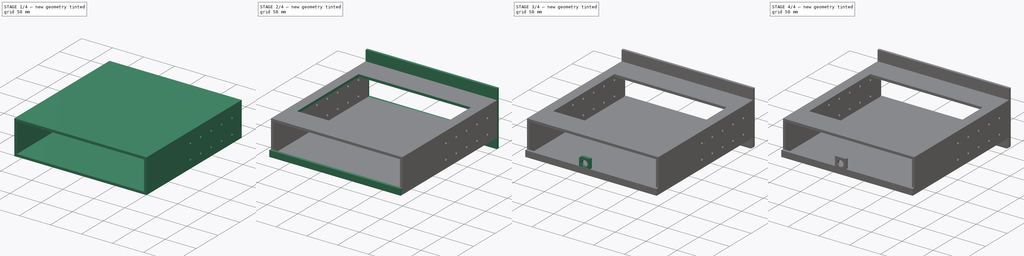
[diagram: build sequence overview — one tinted view per stage of 4, left to right]
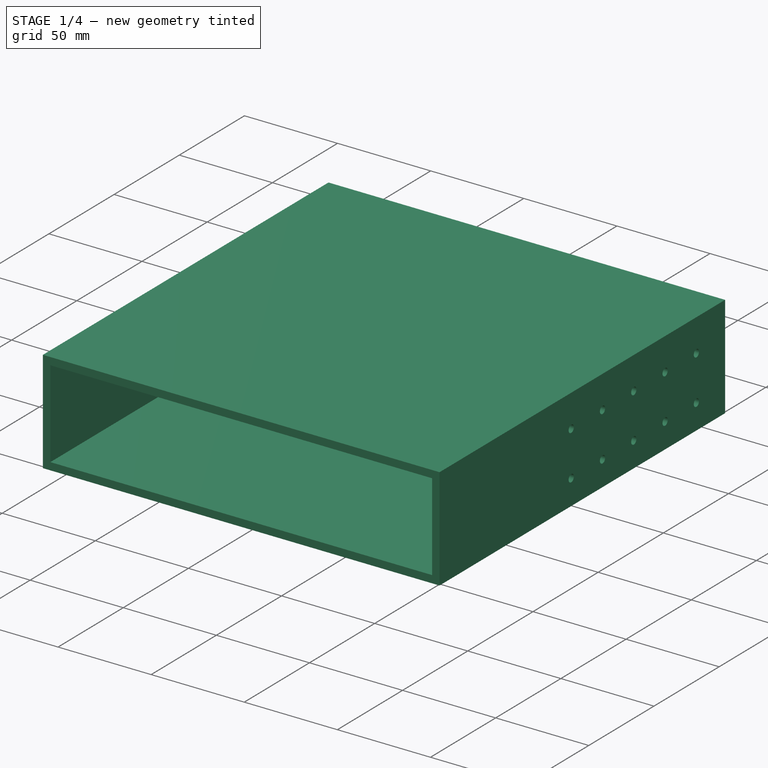
[diagram: stage 1 of 4 — iso view after this stage's code; geometry added in this stage tinted green]
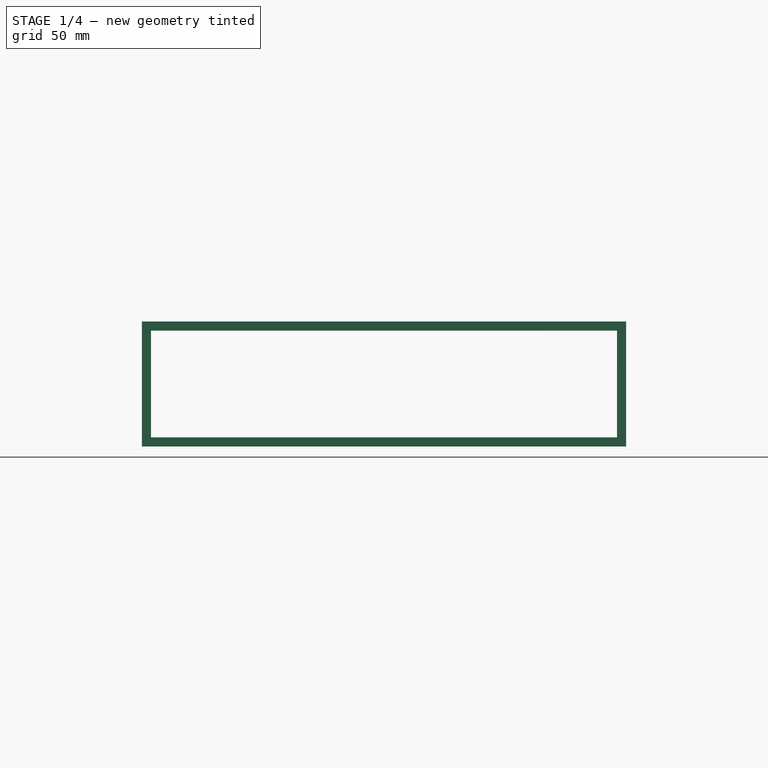
[diagram: stage 1 of 4 — front view after this stage's code; geometry added in this stage tinted green]
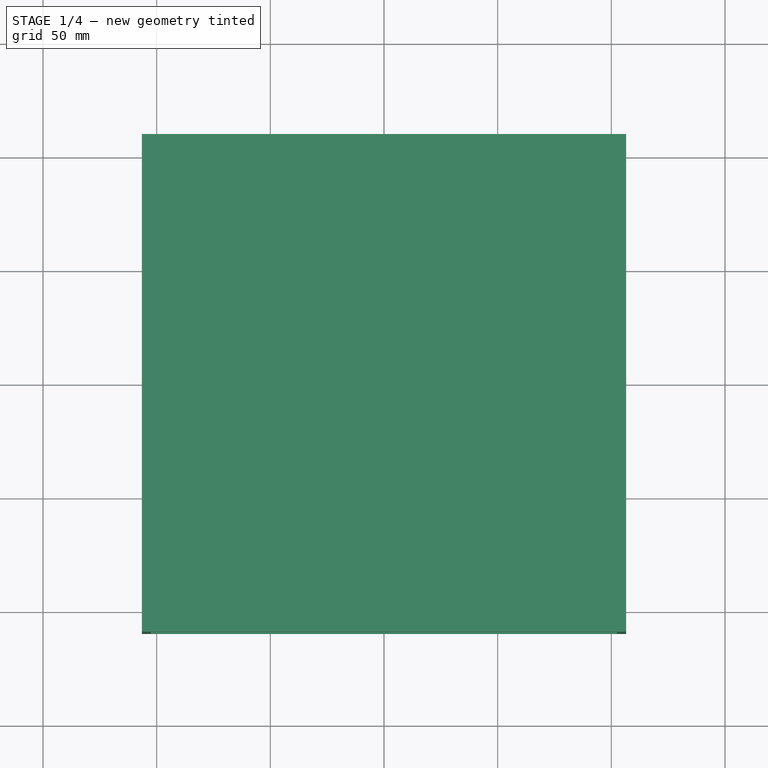
[diagram: stage 1 of 4 — top view after this stage's code; geometry added in this stage tinted green]
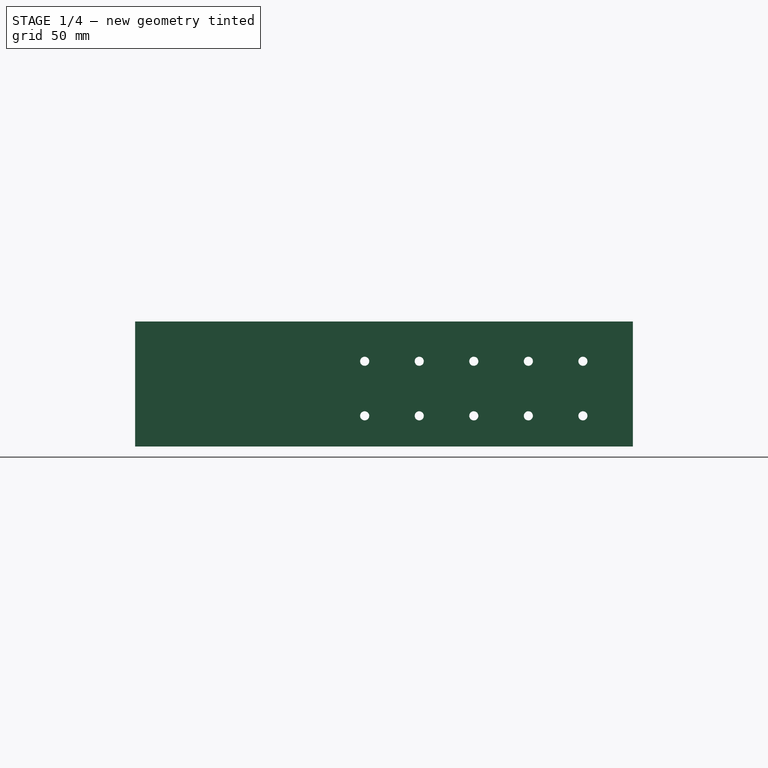
[diagram: stage 1 of 4 — right view after this stage's code; geometry added in this stage tinted green]
FCSTD DOCUMENT  (FreeCAD 1.0R38641 +678 (Git))
Label: frame
License: All rights reserved
LicenseURL: https://en.wikipedia.org/wiki/All_rights_reserved
objects: Sketcher::SketchObject×14, PartDesign::Plane×8, PartDesign::Pad×7, PartDesign::Fillet×3, PartDesign::Chamfer×3, PartDesign::Pocket×1, PartDesign::Body×1
note: 79 computed .brp shape members not serialized (recipe doc carries the construction recipe); baked Part::Feature solids carry a one-line shape summary decoded from their .brp

FEATURE [Sketcher::SketchObject] Sketch001  label="Dół ściana"
  ArcFitTolerance = 1e-06
  AttachmentSupport = -> [XY_Plane]
  FullyConstrained = false
  MakeInternals = false
  MapMode = 5
  sketch-geometry (5):
    g0: LineSegment StartX=-102.5 StartY=-109.5 StartZ=0 EndX=102.5 EndY=-109.5 EndZ=0
    g1: LineSegment StartX=102.5 StartY=-109.5 StartZ=0 EndX=102.5 EndY=109.5 EndZ=0
    g2: LineSegment StartX=102.5 StartY=109.5 StartZ=0 EndX=-102.5 EndY=109.5 EndZ=0
    g3: LineSegment StartX=-102.5 StartY=109.5 StartZ=0 EndX=-102.5 EndY=-109.5 EndZ=0
    g4: GeomPoint [constr] X=0 Y=0 Z=0
  constraints (11):
    c: Coincident(g0,g1)
    c: Coincident(g1,g2)
    c: Coincident(g2,g3)
    c: Coincident(g3,g0)
    c: Horizontal(g0)
    c: Horizontal(g2)
    c: Vertical(g1)
    c: Vertical(g3)
    c: Symmetric(g2,g0,g4)
    c: Distance(g1,g3) = 205
    c: Distance(g0,g2) = 219
FEATURE [PartDesign::Pad] Pad  label="Dół ściana001"
  Direction = (0,0,1)
  Length = 4
  Length2 = 10
  Profile = -> Sketch001
  ReferenceAxis = -> Sketch001 [N_Axis]
  Refine = true
  Suppressed = false
  Type = 0
FEATURE [Sketcher::SketchObject] Sketch002
  ArcFitTolerance = 1e-06
  AttachmentSupport = -> [XZ_Plane]
  FullyConstrained = true
  MakeInternals = false
  MapMode = 5
  Placement = pos=(0,0,0) rot=(1,0,0;1.5708rad)
FEATURE [PartDesign::Plane] DatumPlane  label="Prawa Perspektywa"
  AttachmentSupport = -> [Pad]
  Length = 256.67
  MapMode = 5
  Placement = pos=(-102.5,0,0) rot=(0.57735,-0.57735,-0.57735;2.0944rad)
  ResizeMode = 0
  Width = 126.62
FEATURE [Sketcher::SketchObject] Sketch005
  ArcFitTolerance = 1e-06
  AttachmentSupport = -> [DatumPlane]
  ExternalGeometry = -> [Pad]
  FullyConstrained = true
  MakeInternals = false
  MapMode = 5
  Placement = pos=(-102.5,0,0) rot=(0.57735,-0.57735,-0.57735;2.0944rad)
  sketch-geometry (14):
    g0: LineSegment StartX=-109.5 StartY=0 StartZ=0 EndX=109.5 EndY=0 EndZ=0
    g1: LineSegment StartX=109.5 StartY=0 StartZ=0 EndX=109.5 EndY=51 EndZ=0
    g2: LineSegment StartX=109.5 StartY=51 StartZ=0 EndX=-109.5 EndY=51 EndZ=0
    g3: LineSegment StartX=-109.5 StartY=51 StartZ=0 EndX=-109.5 EndY=0 EndZ=0
    g4: Circle CenterX=-87.5 CenterY=37.5 CenterZ=0 NormalX=0 NormalY=0 NormalZ=1 AngleXU=0 Radius=2
    g5: Circle CenterX=-87.5 CenterY=13.5 CenterZ=0 NormalX=0 NormalY=0 NormalZ=1 AngleXU=0 Radius=2
    g6: Circle CenterX=-63.5 CenterY=37.5 CenterZ=0 NormalX=0 NormalY=0 NormalZ=1 AngleXU=0 Radius=2
    g7: Circle CenterX=-63.5 CenterY=13.5 CenterZ=0 NormalX=0 NormalY=0 NormalZ=1 AngleXU=0 Radius=2
    g8: Circle CenterX=-39.5 CenterY=37.5 CenterZ=0 NormalX=0 NormalY=0 NormalZ=1 AngleXU=0 Radius=2
    g9: Circle CenterX=-39.5 CenterY=13.5 CenterZ=0 NormalX=0 NormalY=0 NormalZ=1 AngleXU=0 Radius=2
    g10: Circle CenterX=-15.5 CenterY=37.5 CenterZ=0 NormalX=0 NormalY=0 NormalZ=1 AngleXU=0 Radius=2
    g11: Circle CenterX=-15.5 CenterY=13.5 CenterZ=0 NormalX=0 NormalY=0 NormalZ=1 AngleXU=0 Radius=2
    g12: Circle CenterX=8.5 CenterY=37.5 CenterZ=0 NormalX=0 NormalY=0 NormalZ=1 AngleXU=0 Radius=2
    g13: Circle CenterX=8.5 CenterY=13.5 CenterZ=0 NormalX=0 NormalY=0 NormalZ=1 AngleXU=0 Radius=2
  constraints (41):
    c: Coincident(g0,g1)
    c: Coincident(g1,g2)
    c: Coincident(g2,g3)
    c: Coincident(g3,g0)
    c: Horizontal(g0)
    c: Horizontal(g2)
    c: Vertical(g1)
    c: Vertical(g3)
    c: Distance(g1,g3) = 219
    c: Distance(g0,g2) = 51
    c: Coincident(g0,g-3)
    c: Diameter(g4) = 4
    c: Diameter(g5) = 4
    c: Diameter(g6) = 4
    c: Diameter(g7) = 4
    c: Diameter(g8) = 4
    c: Diameter(g9) = 4
    c: Diameter(g10) = 4
    c: Diameter(g11) = 4
    c: Distance(g4,g3) = 20
    c: Distance(g5,g3) = 20
    c: Distance(g5,g0) = 11.5
    c: Distance(g4,g5) = 20
    c: Distance(g5,g7) = 20
    c: Distance(g7,g0) = 11.5
    c: Distance(g6,g4) = 20
    c: Distance(g6,g7) = 20
    c: Distance(g8,g6) = 20
    c: Distance(g8,g9) = 20
    c: Distance(g9,g7) = 20
    c: Distance(g9,g0) = 11.5
    c: Distance(g11,g10) = 20
    c: Distance(g10,g8) = 20
    c: Distance(g11,g0) = 11.5
    c: Distance(g11,g9) = 20
    c: Diameter(g12) = 4
    c: Diameter(g13) = 4
    c: Distance(g12,g10) = 20
    c: Distance(g13,g11) = 20
    c: Distance(g13,g0) = 11.5
    c: Distance(g13,g12) = 20
FEATURE [PartDesign::Pad] Pad001  label="Ściana lewa"
  BaseFeature = -> Pad
  Direction = (-1,0,0)
  Length = 4
  Length2 = 10
  Profile = -> Sketch005
  ReferenceAxis = -> Sketch005 [N_Axis]
  Refine = true
  Suppressed = false
  Type = 0
FEATURE [Sketcher::SketchObject] Sketch006
  ArcFitTolerance = 1e-06
  AttachmentSupport = -> [DatumPlane]
  FullyConstrained = true
  MakeInternals = false
  MapMode = 5
  Placement = pos=(-102.5,0,0) rot=(0.57735,-0.57735,-0.57735;2.0944rad)
FEATURE [PartDesign::Plane] DatumPlane001  label="Lewa perspektywa"
  AttachmentSupport = -> [Pad001]
  Length = 256.67
  MapMode = 13
  Placement = pos=(102.5,-36.5,1.33333) rot=(0.57735,0.57735,0.57735;2.0944rad)
  ResizeMode = 0
  Width = 126.62
FEATURE [Sketcher::SketchObject] Sketch  label="Lewa ściana"
  ArcFitTolerance = 1e-06
  AttachmentSupport = -> [DatumPlane001]
  FullyConstrained = true
  MakeInternals = false
  MapMode = 5
  Placement = pos=(102.5,-36.5,1.33333) rot=(0.57735,0.57735,0.57735;2.0944rad)
FEATURE [Sketcher::SketchObject] Sketch007
  ArcFitTolerance = 1e-06
  AttachmentSupport = -> [DatumPlane001]
  ExternalGeometry = -> [Pad001]
  FullyConstrained = true
  MakeInternals = false
  MapMode = 5
  Placement = pos=(102.5,-36.5,1.33333) rot=(0.57735,0.57735,0.57735;2.0944rad)
  sketch-geometry (14):
    g0: LineSegment StartX=146 StartY=-1.33333 StartZ=0 EndX=146 EndY=49.6667 EndZ=0
    g1: LineSegment StartX=146 StartY=49.6667 StartZ=0 EndX=-73 EndY=49.6667 EndZ=0
    g2: LineSegment StartX=-73 StartY=49.6667 StartZ=0 EndX=-73 EndY=-1.33333 EndZ=0
    g3: LineSegment StartX=-73 StartY=-1.33333 StartZ=0 EndX=146 EndY=-1.33333 EndZ=0
    g4: Circle CenterX=124 CenterY=36.1667 CenterZ=0 NormalX=0 NormalY=0 NormalZ=1 AngleXU=0 Radius=2
    g5: Circle CenterX=124 CenterY=12.1667 CenterZ=0 NormalX=0 NormalY=0 NormalZ=1 AngleXU=0 Radius=2
    g6: Circle CenterX=100 CenterY=12.1667 CenterZ=0 NormalX=0 NormalY=0 NormalZ=1 AngleXU=0 Radius=2
    g7: Circle CenterX=100 CenterY=36.1667 CenterZ=0 NormalX=0 NormalY=0 NormalZ=1 AngleXU=0 Radius=2
    g8: Circle CenterX=76 CenterY=36.1667 CenterZ=0 NormalX=0 NormalY=0 NormalZ=1 AngleXU=0 Radius=2
    g9: Circle CenterX=76 CenterY=12.1667 CenterZ=0 NormalX=0 NormalY=0 NormalZ=1 AngleXU=0 Radius=2
    g10: Circle CenterX=52 CenterY=12.1667 CenterZ=0 NormalX=0 NormalY=0 NormalZ=1 AngleXU=0 Radius=2
    g11: Circle CenterX=52 CenterY=36.1667 CenterZ=0 NormalX=0 NormalY=0 NormalZ=1 AngleXU=0 Radius=2
    g12: Circle CenterX=28 CenterY=36.1667 CenterZ=0 NormalX=0 NormalY=0 NormalZ=1 AngleXU=0 Radius=2
    g13: Circle CenterX=28 CenterY=12.1667 CenterZ=0 NormalX=0 NormalY=0 NormalZ=1 AngleXU=0 Radius=2
  constraints (41):
    c: Coincident(g0,g1)
    c: Coincident(g1,g2)
    c: Coincident(g2,g3)
    c: Coincident(g3,g0)
    c: Vertical(g0)
    c: Vertical(g2)
    c: Horizontal(g1)
    c: Horizontal(g3)
    c: Coincident(g0,g-4)
    c: Distance(g0,g2) = 219
    c: Distance(g3,g1) = 51
    c: Diameter(g4) = 4
    c: Diameter(g5) = 4
    c: Diameter(g6) = 4
    c: Diameter(g7) = 4
    c: Diameter(g8) = 4
    c: Diameter(g9) = 4
    c: Diameter(g10) = 4
    c: Diameter(g11) = 4
    c: Diameter(g12) = 4
    c: Diameter(g13) = 4
    c: Distance(g5,g0) = 20
    c: Distance(g4,g0) = 20
    c: Distance(g5,g3) = 11.5
    c: Distance(g4,g5) = 20
    c: Distance(g6,g5) = 20
    c: Distance(g6,g3) = 11.5
    c: Distance(g7,g4) = 20
    c: Distance(g7,g6) = 20
    c: Distance(g9,g6) = 20
    c: Distance(g9,g3) = 11.5
    c: Distance(g8,g9) = 20
    c: Distance(g8,g7) = 20
    c: Distance(g11,g8) = 20
    c: Distance(g11,g10) = 20
    c: Distance(g10,g9) = 20
    c: Distance(g10,g3) = 11.5
    c: Distance(g10,g13) = 20
    c: Distance(g12,g11) = 20
    c: Distance(g12,g13) = 20
    c: Distance(g13,g3) = 11.5
FEATURE [PartDesign::Pad] Pad002  label="Prawa ściana"
  BaseFeature = -> Pad001
  Direction = (1,0,0)
  Length = 4
  Length2 = 10
  Profile = -> Sketch007
  ReferenceAxis = -> Sketch007 [N_Axis]
  Refine = true
  Suppressed = false
  Type = 0
FEATURE [PartDesign::Plane] DatumPlane002  label="Góra perspektywa"
  AttachmentSupport = -> [Pad002]
  Length = 256.978
  MapMode = 5
  Placement = pos=(0,0,51) rot=(0,0,1;0rad)
  ResizeMode = 0
  Width = 270.978
FEATURE [Sketcher::SketchObject] Sketch008
  ArcFitTolerance = 1e-06
  AttachmentSupport = -> [DatumPlane002]
  ExternalGeometry = -> [Pad002]
  FullyConstrained = true
  MakeInternals = false
  MapMode = 5
  Placement = pos=(0,0,51) rot=(0,0,1;0rad)
  sketch-geometry (4):
    g0: LineSegment StartX=-106.5 StartY=109.5 StartZ=0 EndX=-106.5 EndY=-109.5 EndZ=0
    g1: LineSegment StartX=-106.5 StartY=-109.5 StartZ=0 EndX=106.5 EndY=-109.5 EndZ=0
    g2: LineSegment StartX=106.5 StartY=-109.5 StartZ=0 EndX=106.5 EndY=109.5 EndZ=0
    g3: LineSegment StartX=106.5 StartY=109.5 StartZ=0 EndX=-106.5 EndY=109.5 EndZ=0
  constraints (10):
    c: Coincident(g0,g1)
    c: Coincident(g1,g2)
    c: Coincident(g2,g3)
    c: Coincident(g3,g0)
    c: Vertical(g0)
    c: Vertical(g2)
    c: Horizontal(g1)
    c: Horizontal(g3)
    c: Coincident(g0,g-6)
    c: Coincident(g1,g-4)
FEATURE [PartDesign::Pad] Pad003
  BaseFeature = -> Pad002
  Direction = (0,0,1)
  Length = 4
  Length2 = 10
  Profile = -> Sketch008
  ReferenceAxis = -> Sketch008 [N_Axis]
  Refine = true
  Suppressed = false
  Type = 0
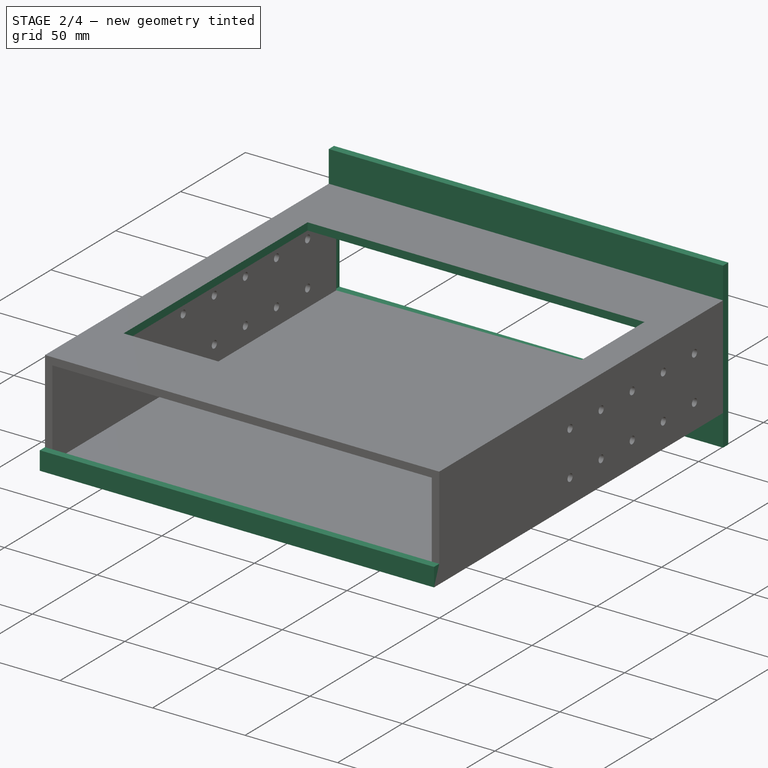
[diagram: stage 2 of 4 — iso view after this stage's code; geometry added in this stage tinted green]
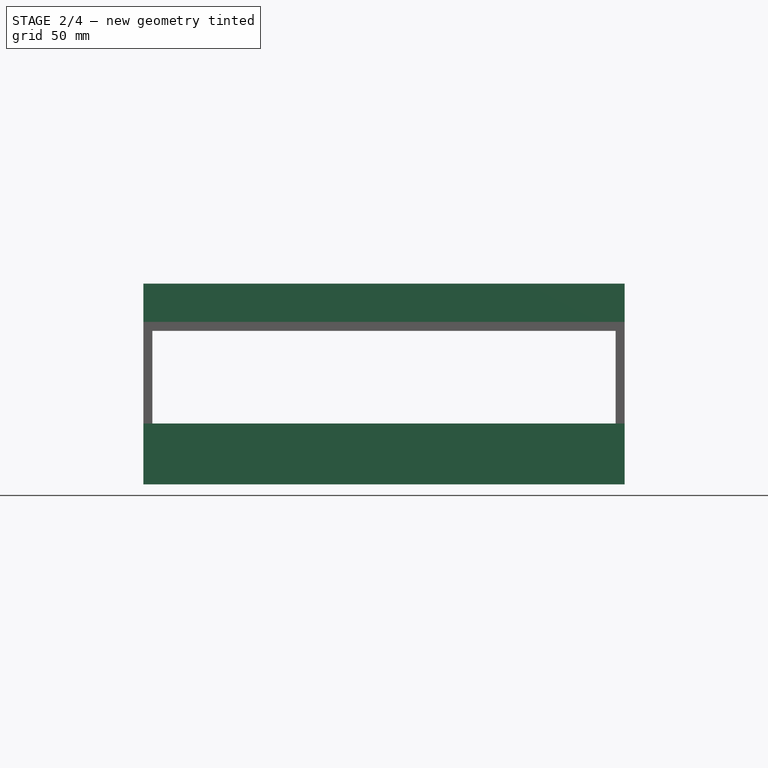
[diagram: stage 2 of 4 — front view after this stage's code; geometry added in this stage tinted green]
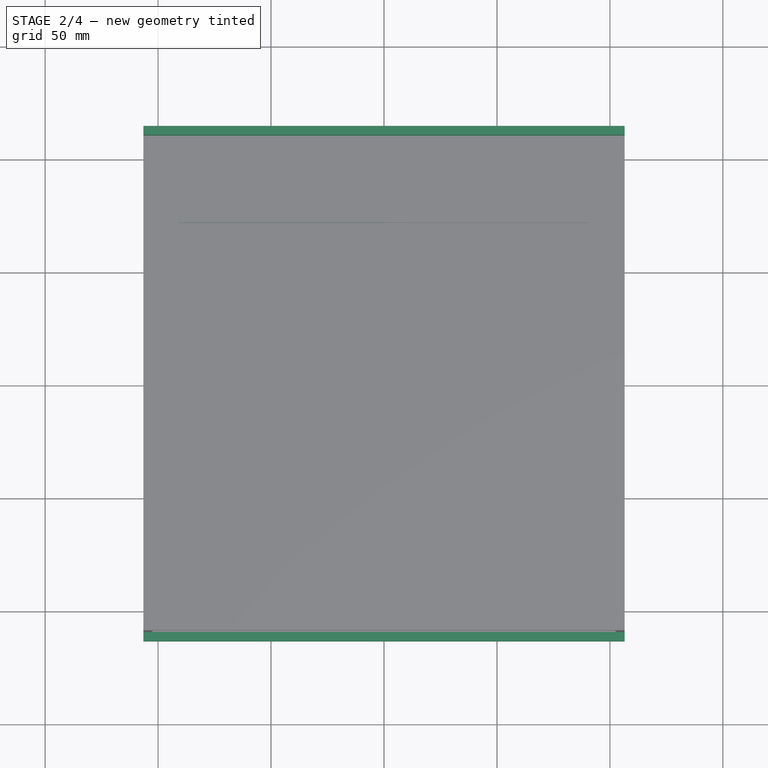
[diagram: stage 2 of 4 — top view after this stage's code; geometry added in this stage tinted green]
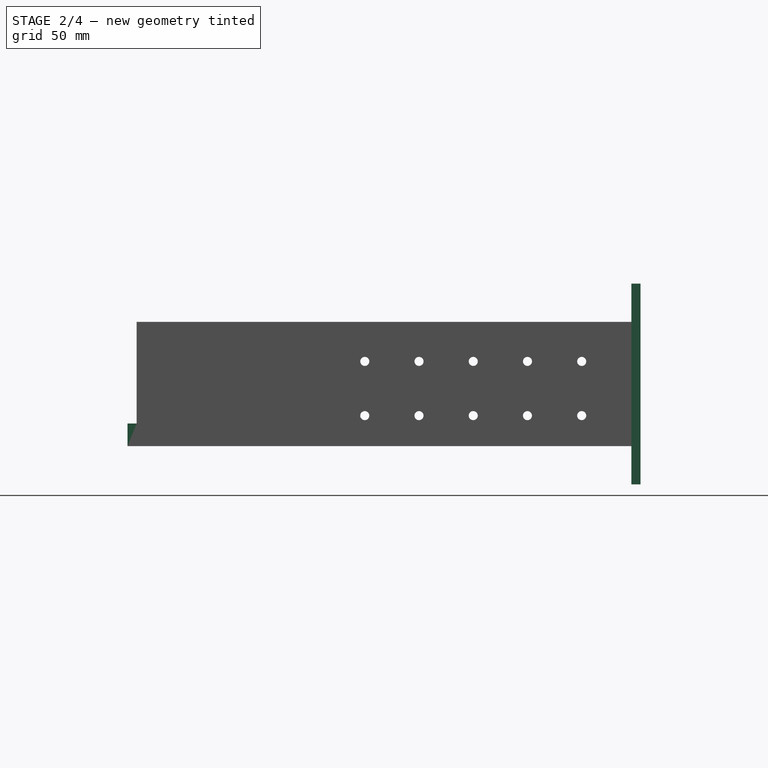
[diagram: stage 2 of 4 — right view after this stage's code; geometry added in this stage tinted green]
FEATURE [PartDesign::Plane] DatumPlane004
  Length = 256.978
  MapMode = 5
  Placement = pos=(0,0,55) rot=(0,0,1;0rad)
  ResizeMode = 0
  Width = 270.978
FEATURE [Sketcher::SketchObject] Sketch011
  ArcFitTolerance = 1e-06
  AttachmentSupport = -> [DatumPlane004]
  FullyConstrained = true
  MakeInternals = false
  MapMode = 5
  Placement = pos=(0,0,55) rot=(0,0,1;0rad)
  sketch-geometry (5):
    g0: LineSegment StartX=-91 StartY=-71 StartZ=0 EndX=91 EndY=-71 EndZ=0
    g1: LineSegment StartX=91 StartY=-71 StartZ=0 EndX=91 EndY=71 EndZ=0
    g2: LineSegment StartX=91 StartY=71 StartZ=0 EndX=-91 EndY=71 EndZ=0
    g3: LineSegment StartX=-91 StartY=71 StartZ=0 EndX=-91 EndY=-71 EndZ=0
    g4: GeomPoint [constr] X=0 Y=0 Z=0
  constraints (12):
    c: Coincident(g0,g1)
    c: Coincident(g1,g2)
    c: Coincident(g2,g3)
    c: Coincident(g3,g0)
    c: Horizontal(g0)
    c: Horizontal(g2)
    c: Vertical(g1)
    c: Vertical(g3)
    c: Symmetric(g2,g0,g4)
    c: Distance(g1,g3) = 182
    c: Distance(g0,g2) = 142
    c: Coincident(g4,g-1)
FEATURE [PartDesign::Plane] DatumPlane003  label="Tył perspektywa"
  AttachmentSupport = -> [Pad003]
  Length = 241.74
  MapMode = 5
  Placement = pos=(0,-109.5,0) rot=(1,0,0;1.5708rad)
  ResizeMode = 0
  Width = 125.69
FEATURE [Sketcher::SketchObject] Sketch010
  ArcFitTolerance = 1e-06
  AttachmentSupport = -> [DatumPlane003]
  FullyConstrained = true
  MakeInternals = false
  MapMode = 5
  Placement = pos=(0,-109.5,0) rot=(1,0,0;1.5708rad)
FEATURE [PartDesign::Pocket] Pocket
  BaseFeature = -> Pad003
  Direction = (0,0,-1)
  Length = 5
  Length2 = 5
  Profile = -> Sketch011
  ReferenceAxis = -> Sketch011 [N_Axis]
  Refine = true
  Suppressed = false
  Type = 2
FEATURE [PartDesign::Plane] DatumPlane005
  AttachmentSupport = -> [Pocket]
  Length = 256.978
  MapMode = 2
  ResizeMode = 0
  Width = 270.978
FEATURE [PartDesign::Plane] DatumPlane006
  AttachmentSupport = -> [Pocket]
  Length = 256.67
  MapMode = 5
  Placement = pos=(106.5,0,0) rot=(0.57735,0.57735,0.57735;2.0944rad)
  ResizeMode = 0
  Width = 126.62
FEATURE [Sketcher::SketchObject] Sketch012
  ArcFitTolerance = 1e-06
  AttachmentSupport = -> [DatumPlane006]
  ExternalGeometry = -> [DatumPlane004,DatumPlane005,DatumPlane003]
  FullyConstrained = true
  MakeInternals = false
  MapMode = 5
  Placement = pos=(106.5,0,0) rot=(0.57735,0.57735,0.57735;2.0944rad)
FEATURE [PartDesign::Plane] DatumPlane007
  AttachmentSupport = -> [Pocket]
  Length = 241.74
  MapMode = 5
  Placement = pos=(0,109.5,0) rot=(0,0.707107,0.707107;3.14159rad)
  ResizeMode = 0
  Width = 125.69
FEATURE [Sketcher::SketchObject] Sketch013
  ArcFitTolerance = 1e-06
  AttachmentSupport = -> [DatumPlane007]
  FullyConstrained = true
  MakeInternals = false
  MapMode = 5
  Placement = pos=(0,109.5,0) rot=(0,0.707107,0.707107;3.14159rad)
FEATURE [Sketcher::SketchObject] Sketch014
  ArcFitTolerance = 1e-06
  AttachmentSupport = -> [DatumPlane007]
  ExternalGeometry = -> [DatumPlane004,DatumPlane005]
  FullyConstrained = true
  MakeInternals = false
  MapMode = 5
  Placement = pos=(0,109.5,0) rot=(0,0.707107,0.707107;3.14159rad)
  sketch-geometry (9):
    g0: LineSegment StartX=-106.5 StartY=71.95 StartZ=0 EndX=-106.5 EndY=-16.95 EndZ=0
    g1: LineSegment StartX=-106.5 StartY=-16.95 StartZ=0 EndX=106.5 EndY=-16.95 EndZ=0
    g2: LineSegment StartX=106.5 StartY=-16.95 StartZ=0 EndX=106.5 EndY=71.95 EndZ=0
    g3: LineSegment StartX=106.5 StartY=71.95 StartZ=0 EndX=-106.5 EndY=71.95 EndZ=0
    g4: GeomPoint [constr] X=0 Y=27.5 Z=0
    g5: LineSegment StartX=-102.5 StartY=51 StartZ=0 EndX=-102.5 EndY=4 EndZ=0
    g6: LineSegment StartX=-102.5 StartY=4 StartZ=0 EndX=103.5 EndY=4 EndZ=0
    g7: LineSegment StartX=103.5 StartY=4 StartZ=0 EndX=103.5 EndY=51 EndZ=0
    g8: LineSegment StartX=103.5 StartY=51 StartZ=0 EndX=-102.5 EndY=51 EndZ=0
  constraints (25):
    c: Coincident(g0,g1)
    c: Coincident(g1,g2)
    c: Coincident(g2,g3)
    c: Coincident(g3,g0)
    c: Vertical(g0)
    c: Vertical(g2)
    c: Horizontal(g1)
    c: Horizontal(g3)
    c: Symmetric(g2,g0,g4)
    c: PointOnObject(g4,g-2)
    c: Distance(g2,g0) = 213
    c: Distance(g1,g3) = 88.9
    c: Distance(g-3,g3) = 16.95
    c: Coincident(g5,g6)
    c: Coincident(g6,g7)
    c: Coincident(g7,g8)
    c: Coincident(g8,g5)
    c: Vertical(g5)
    c: Vertical(g7)
    c: Horizontal(g6)
    c: Horizontal(g8)
    c: Distance(g7,g5) = 206
    c: Distance(g6,g8) = 47
    c: Distance(g3,g8) = 20.95
    c: Distance(g0,g5) = 4
FEATURE [PartDesign::Pad] Pad005  label="Atrapa U2 przód"
  BaseFeature = -> Pocket
  Direction = (0,1,-2e-16)
  Length = 4
  Length2 = 10
  Profile = -> Sketch014
  ReferenceAxis = -> Sketch014 [N_Axis]
  Refine = true
  Suppressed = false
  Type = 0
FEATURE [Sketcher::SketchObject] Sketch009  label="Tylni hamulec"
  ArcFitTolerance = 1e-06
  AttachmentSupport = -> [DatumPlane003]
  ExternalGeometry = -> [Pad003,DatumPlane]
  FullyConstrained = true
  MakeInternals = false
  MapMode = 5
  Placement = pos=(0,-109.5,0) rot=(1,0,0;1.5708rad)
  sketch-geometry (4):
    g0: LineSegment StartX=-106.5 StartY=0 StartZ=0 EndX=106.5 EndY=0 EndZ=0
    g1: LineSegment StartX=106.5 StartY=0 StartZ=0 EndX=106.5 EndY=10 EndZ=0
    g2: LineSegment StartX=106.5 StartY=10 StartZ=0 EndX=-106.5 EndY=10 EndZ=0
    g3: LineSegment StartX=-106.5 StartY=10 StartZ=0 EndX=-106.5 EndY=0 EndZ=0
  constraints (11):
    c: Coincident(g0,g1)
    c: Coincident(g1,g2)
    c: Coincident(g2,g3)
    c: Coincident(g3,g0)
    c: Horizontal(g0)
    c: Horizontal(g2)
    c: Vertical(g1)
    c: Vertical(g3)
    c: Coincident(g0,g-4)
    c: Distance(g1,g3) = 213
    c: Distance(g0,g2) = 10
FEATURE [PartDesign::Pad] Pad006  label="Tylni hamulec001"
  BaseFeature = -> Pad005
  Direction = (0,-1,2e-16)
  Length = 4
  Length2 = 10
  Profile = -> Sketch009
  ReferenceAxis = -> Sketch009 [N_Axis]
  Refine = true
  Suppressed = false
  Type = 0
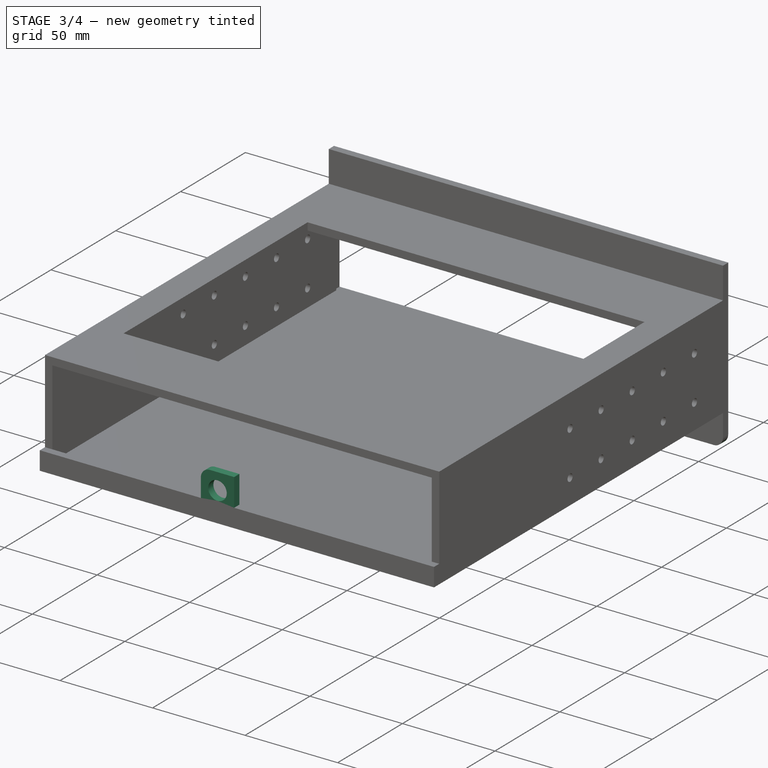
[diagram: stage 3 of 4 — iso view after this stage's code; geometry added in this stage tinted green]
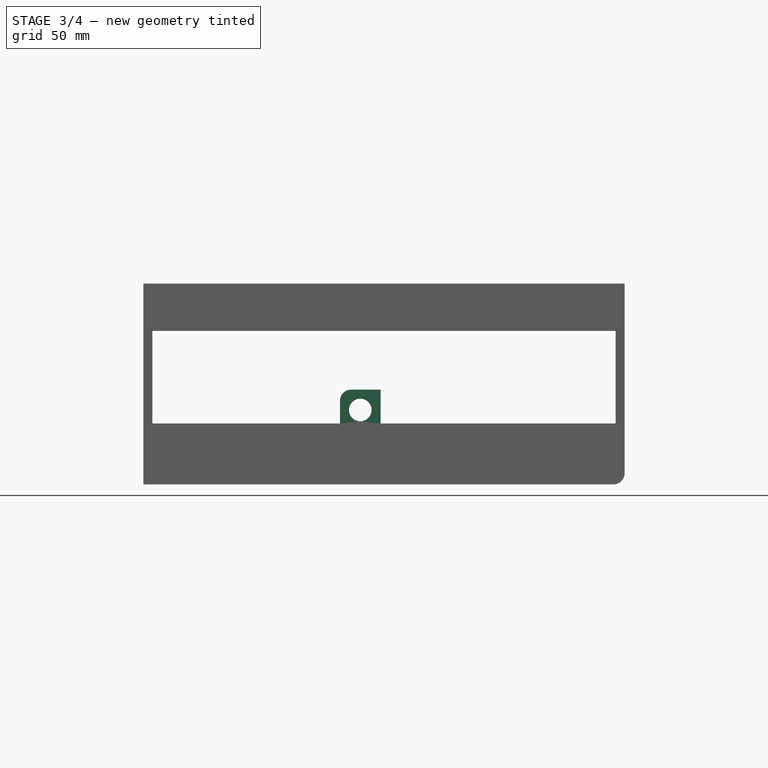
[diagram: stage 3 of 4 — front view after this stage's code; geometry added in this stage tinted green]
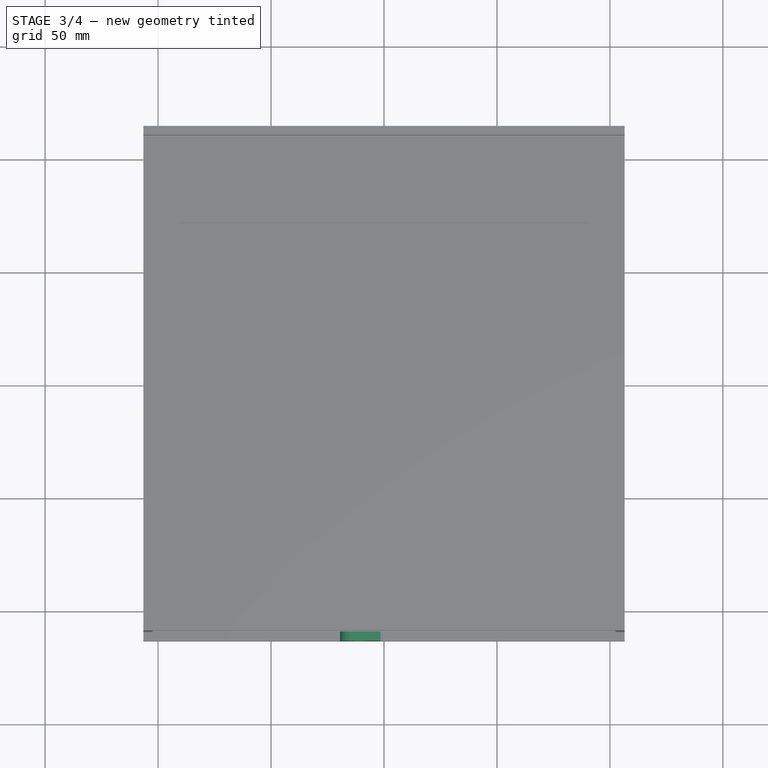
[diagram: stage 3 of 4 — top view after this stage's code; geometry added in this stage tinted green]
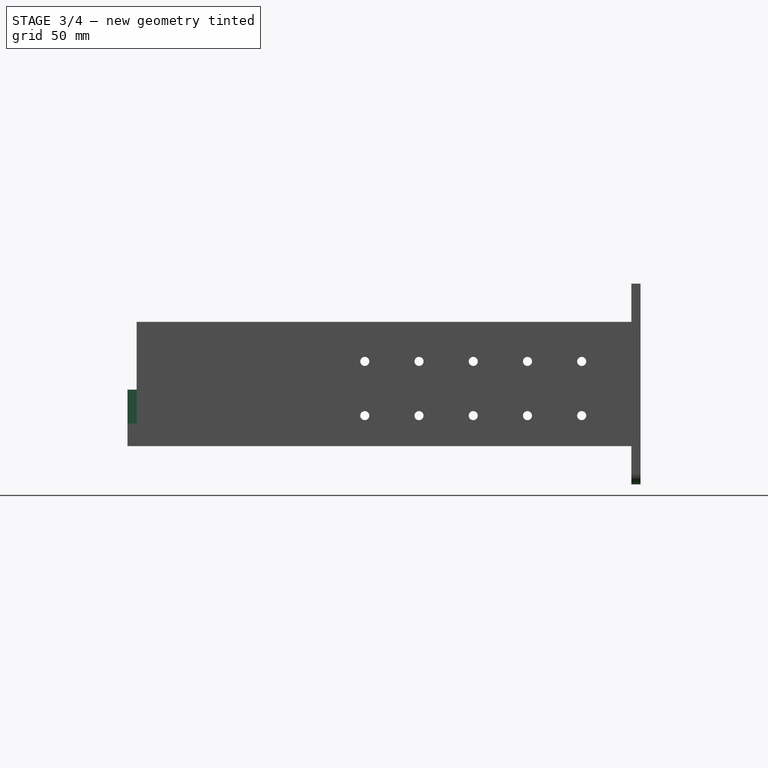
[diagram: stage 3 of 4 — right view after this stage's code; geometry added in this stage tinted green]
FEATURE [Sketcher::SketchObject] Sketch015
  ArcFitTolerance = 1e-06
  AttachmentSupport = -> [DatumPlane003]
  ExternalGeometry = -> [DatumPlane005,Pad006,DatumPlane001,DatumPlane]
  FullyConstrained = true
  MakeInternals = false
  MapMode = 5
  Placement = pos=(0,-109.5,0) rot=(1,0,0;1.5708rad)
  sketch-geometry (5):
    g0: LineSegment StartX=-1.5 StartY=25 StartZ=0 EndX=-1.5 EndY=10 EndZ=0
    g1: LineSegment StartX=-1.5 StartY=10 StartZ=0 EndX=-19.5 EndY=10 EndZ=0
    g2: LineSegment StartX=-19.5 StartY=10 StartZ=0 EndX=-19.5 EndY=25 EndZ=0
    g3: LineSegment StartX=-19.5 StartY=25 StartZ=0 EndX=-1.5 EndY=25 EndZ=0
    g4: Circle CenterX=-10.5 CenterY=16 CenterZ=0 NormalX=0 NormalY=0 NormalZ=1 AngleXU=0 Radius=5
  constraints (15):
    c: Coincident(g0,g1)
    c: Coincident(g1,g2)
    c: Coincident(g2,g3)
    c: Coincident(g3,g0)
    c: Vertical(g0)
    c: Vertical(g2)
    c: Horizontal(g1)
    c: Horizontal(g3)
    c: Distance(g0,g2) = 18
    c: Distance(g1,g3) = 15
    c: Diameter(g4) = 10
    c: Distance(g4,g3) = 4
    c: Distance(g-3,g1) = 10
    c: Distance(g4,g0) = 4
    c: Distance(g2,g-8) = 83
FEATURE [PartDesign::Pad] Pad007  label="uchwyt tylni"
  BaseFeature = -> Pad006
  Direction = (0,-1,2e-16)
  Length = 4
  Length2 = 10
  Profile = -> Sketch015
  ReferenceAxis = -> Sketch015 [N_Axis]
  Refine = true
  Suppressed = false
  Type = 0
FEATURE [PartDesign::Fillet] Fillet001
  Base = -> Pad007 [Edge26]
  BaseFeature = -> Pad007
  Radius = 5
  Refine = true
  SupportTransform = false
  Suppressed = false
  UseAllEdges = false
FEATURE [PartDesign::Fillet] Fillet
  Base = -> Fillet001 [Edge132]
  BaseFeature = -> Fillet001
  Radius = 5
  Refine = true
  SupportTransform = false
  Suppressed = false
  UseAllEdges = false
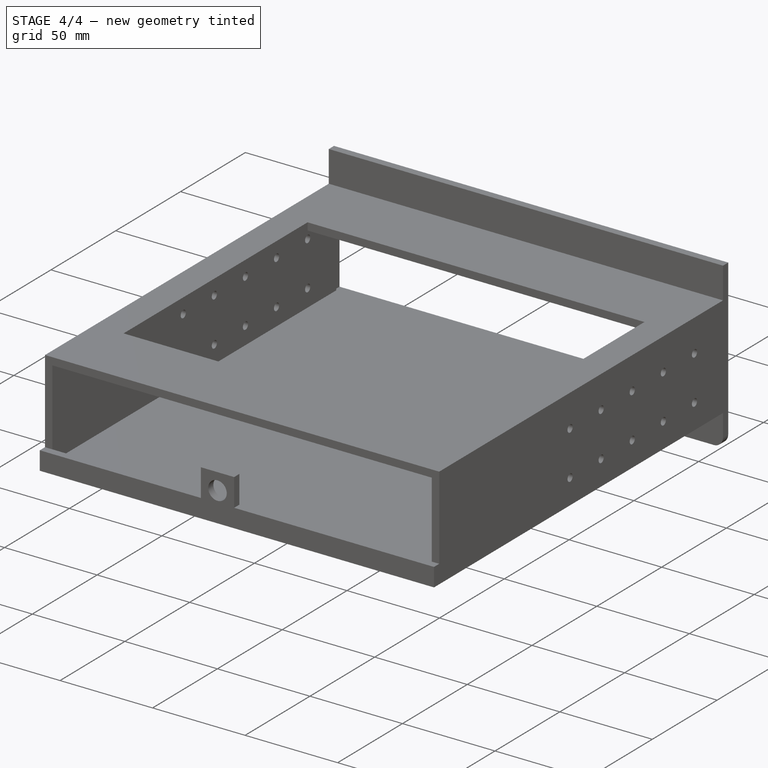
[diagram: stage 4 of 4 — iso view after this stage's code; geometry added in this stage tinted green]
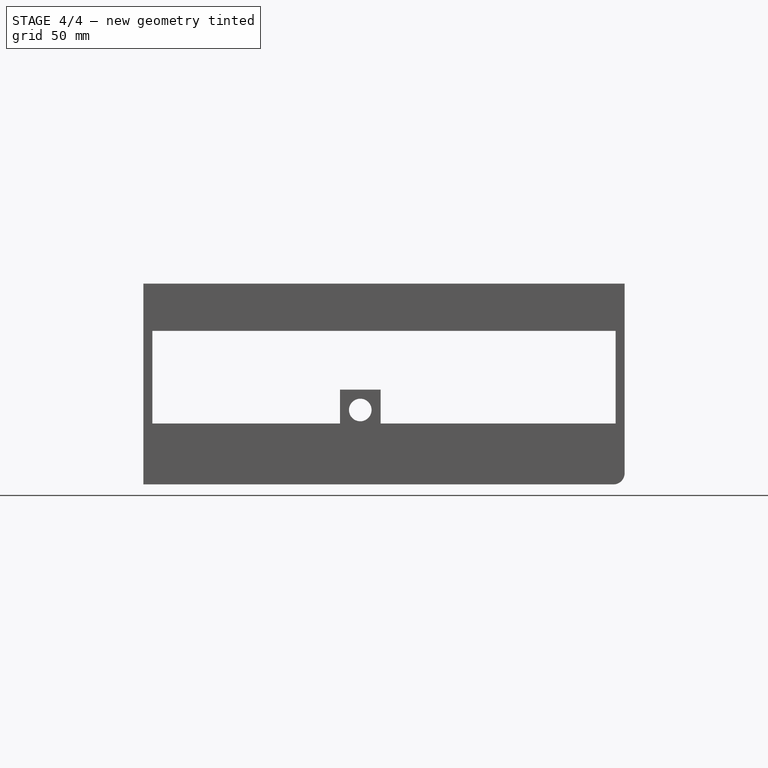
[diagram: stage 4 of 4 — front view after this stage's code; geometry added in this stage tinted green]
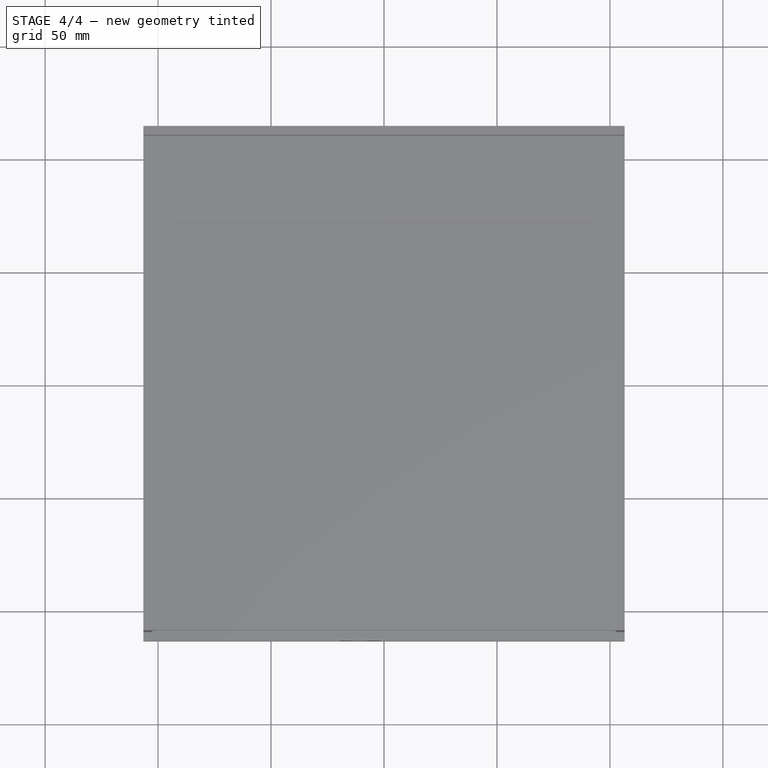
[diagram: stage 4 of 4 — top view after this stage's code; geometry added in this stage tinted green]
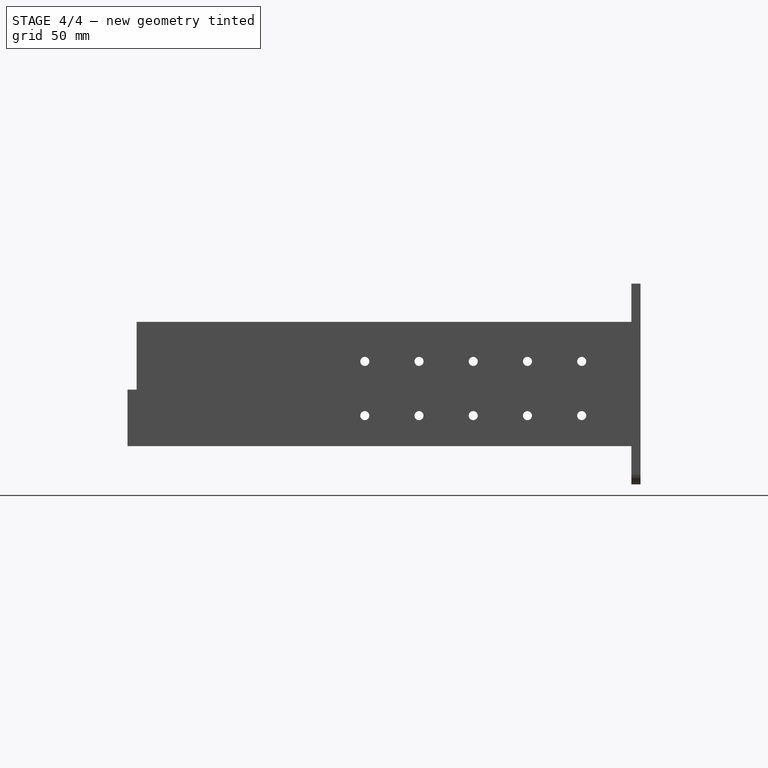
[diagram: stage 4 of 4 — right view after this stage's code; geometry added in this stage tinted green]
FEATURE [PartDesign::Chamfer] Chamfer005
  Angle = 45
  Base = -> Fillet001 [Edge6]
  BaseFeature = -> Fillet001
  ChamferType = 0
  FlipDirection = false
  Refine = true
  Size = 1
  Size2 = 1
  SupportTransform = false
  Suppressed = false
  UseAllEdges = false
FEATURE [PartDesign::Fillet] Fillet002
  Base = -> Fillet [Edge13]
  BaseFeature = -> Fillet
  Radius = 5
  Refine = true
  SupportTransform = false
  Suppressed = false
  UseAllEdges = false
FEATURE [PartDesign::Chamfer] Chamfer
  Angle = 45
  Base = -> Fillet002 [Edge4]
  BaseFeature = -> Fillet002
  ChamferType = 0
  FlipDirection = false
  Refine = true
  Size = 1
  Size2 = 1
  SupportTransform = false
  Suppressed = false
  UseAllEdges = false
FEATURE [PartDesign::Chamfer] Chamfer006
  Angle = 45
  Base = -> Chamfer [Edge75]
  BaseFeature = -> Chamfer
  ChamferType = 0
  FlipDirection = false
  Refine = true
  Size = 1
  Size2 = 1
  SupportTransform = false
  Suppressed = false
  UseAllEdges = false
FEATURE [PartDesign::Body] Body  label="Zawartość"
  AllowCompound = false
  Group = -> [Sketch001,Pad,Sketch002,DatumPlane,Sketch005,Pad001,Sketch006,DatumPlane001,Sketch,Sketch007,Pad002,DatumPlane002,Sketch008,Pad003,DatumPlane003,Sketch009,Sketch010,DatumPlane004,Sketch011,Pocket,DatumPlane005,DatumPlane006,Sketch012,DatumPlane007,Sketch013,Sketch014,Pad005,Pad006,Sketch015,Pad007,Fillet001,Chamfer005,Fillet,Fillet002,Chamfer,Chamfer006]
  Origin = -> Origin
  Tip = -> Chamfer006
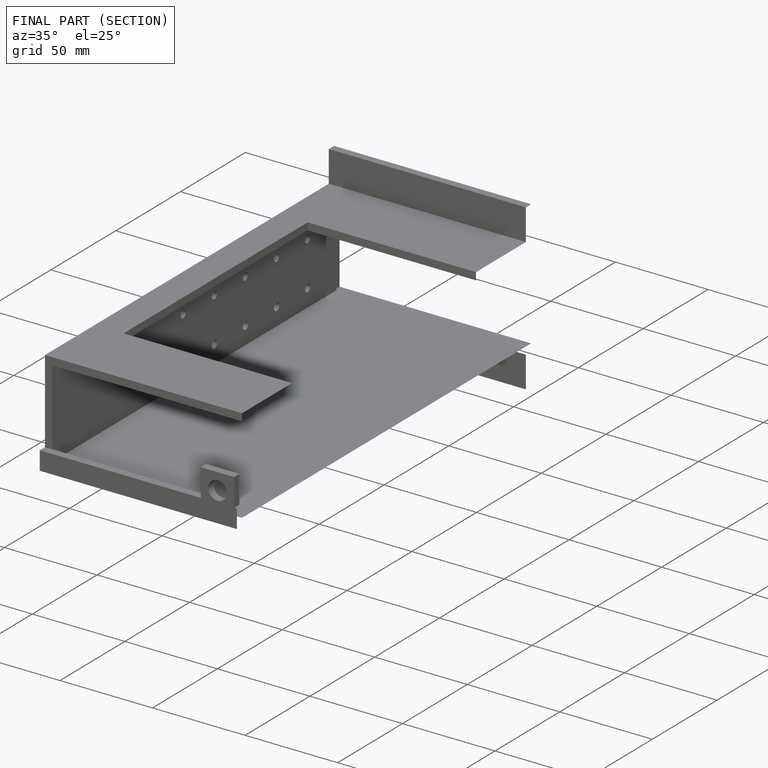
[diagram: finished part — half-section view (interior)]
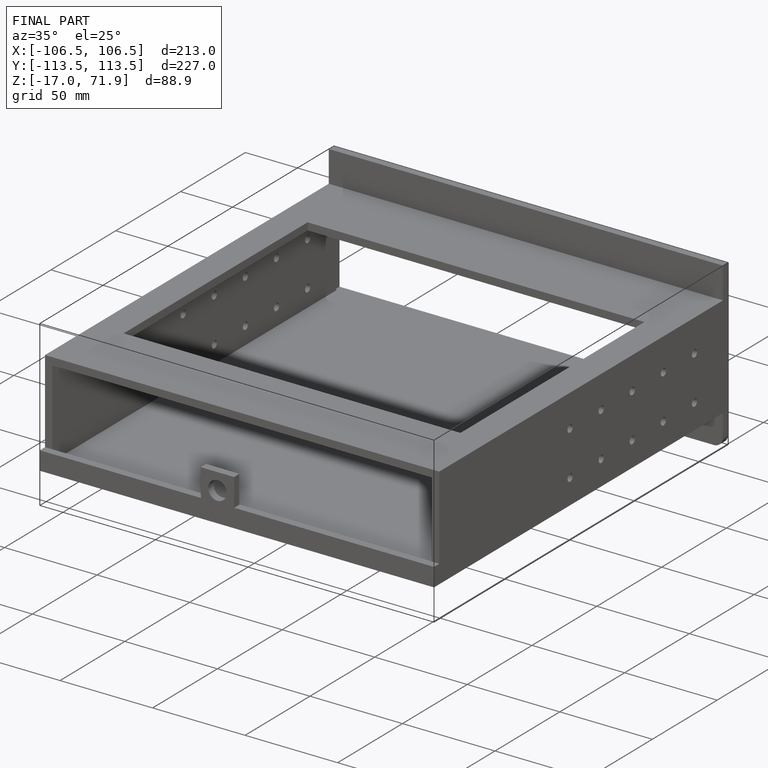
[diagram: finished part — iso view with bounding-box wireframe]
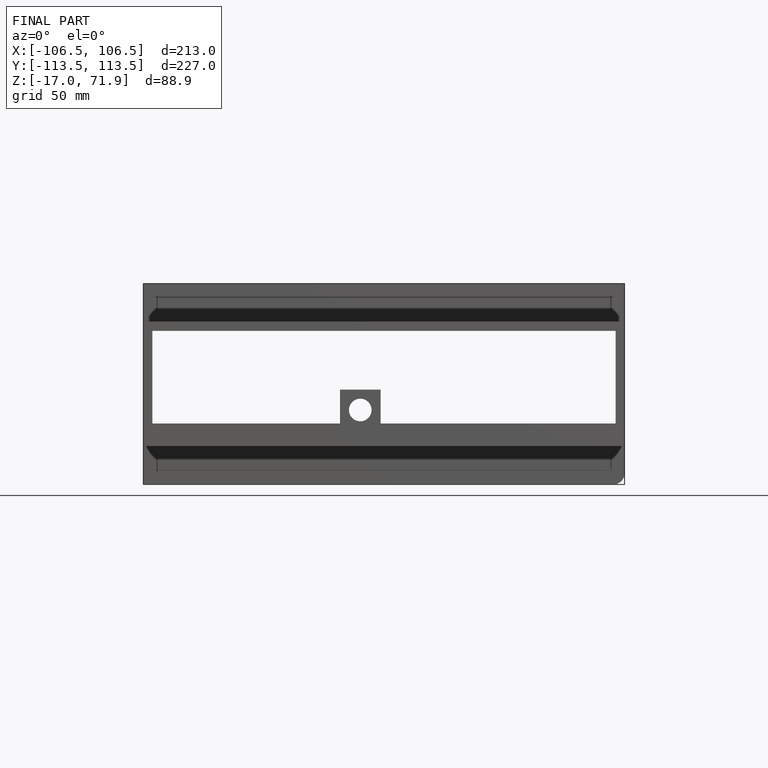
[diagram: finished part — front view with bounding-box wireframe]
